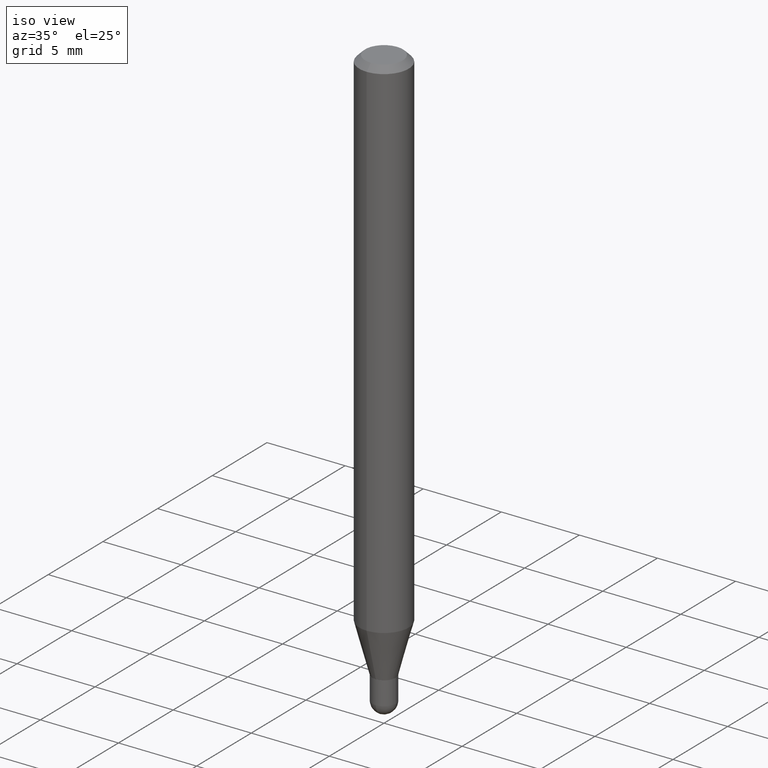
[diagram: clean part render]
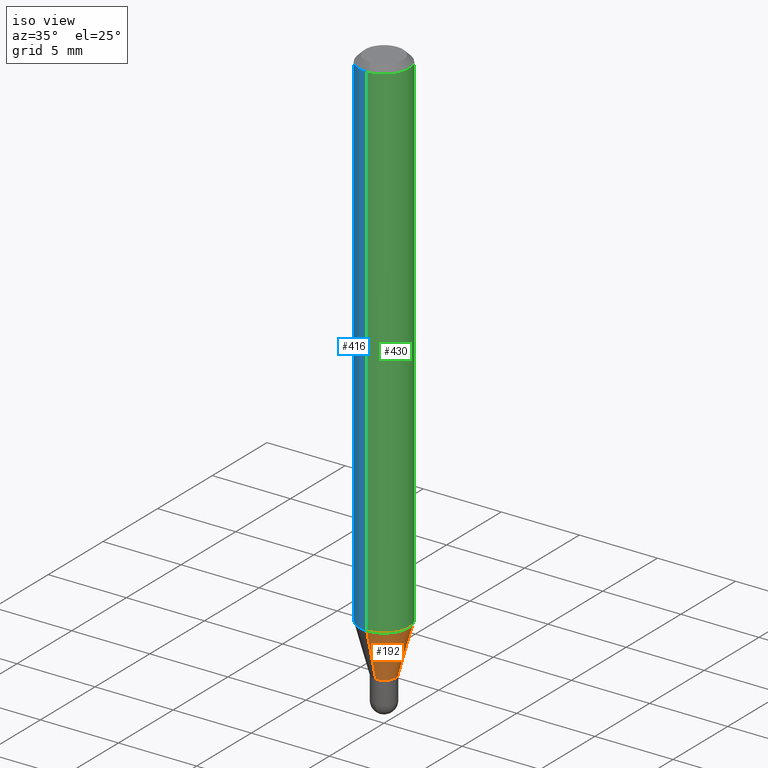
[diagram: same view with three faces highlighted in distinct colors, each labeled with its STEP entity id]
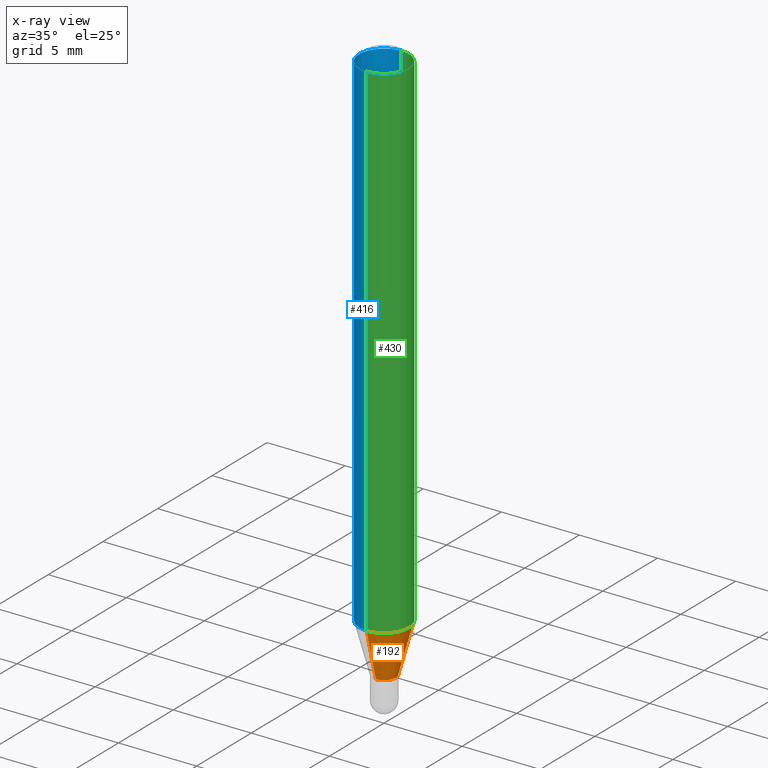
[diagram: x-ray of the same camera — body ghosted, the three highlighted faces saturated]
A machine part, iso view with three faces highlighted in distinct colors.
The next image is the same camera in x-ray (body ghosted, the three faces saturated) — at least one of them is partly hidden behind the body in this view.
Their STEP definitions:

[orange] entity #192 — the highlighted conical surface has half-angle 15 deg.
#3 = CARTESIAN_POINT ( 'NONE',  ( 3.268496584496797545E-16, 0.02949999999999526612, -1.411500000000000199 ) ) ;
#17 = DIRECTION ( 'NONE',  ( -2.445469482940536333E-29, 3.491480369690894735E-15, 1.000000000000000000 ) ) ;
#20 = CARTESIAN_POINT ( 'NONE',  ( 4.440892098500937762E-16, 0.06249999999999546890, -1.288342323350232244 ) ) ;
#30 = EDGE_CURVE ( 'NONE', #60, #437, #422, .T. ) ;
#60 = VERTEX_POINT ( 'NONE', #3 ) ;
#83 = VECTOR ( 'NONE', #88, 39.37007874015748143 ) ;
#88 = DIRECTION ( 'NONE',  ( -1.807323732225377077E-15, -0.2588190451025249028, 0.9659258262890670910 ) ) ;
#124 = LINE ( 'NONE', #446, #83 ) ;
#129 = DIRECTION ( 'NONE',  ( -6.982962677686265922E-15, -1.000000000000000000, 4.370956789862821150E-15 ) ) ;
#132 = CARTESIAN_POINT ( 'NONE',  ( 3.451780175170567435E-29, -4.928224541818698514E-15, -1.411500000000000199 ) ) ;
#137 = FACE_OUTER_BOUND ( 'NONE', #418, .T. ) ;
#150 = EDGE_CURVE ( 'NONE', #257, #60, #152, .T. ) ;
#152 = CIRCLE ( 'NONE', #440, 0.02950000000000019620 ) ;
#167 = ORIENTED_EDGE ( 'NONE', *, *, #150, .T. ) ;
#178 = ORIENTED_EDGE ( 'NONE', *, *, #476, .F. ) ;
#192 = ADVANCED_FACE ( 'NONE', ( #137 ), #429, .T. ) ;
#208 = CARTESIAN_POINT ( 'NONE',  ( -2.059973989917116845E-16, -0.02950000000000512629, -1.411500000000000199 ) ) ;
#222 = ORIENTED_EDGE ( 'NONE', *, *, #467, .F. ) ;
#235 = CARTESIAN_POINT ( 'NONE',  ( 2.096101070492654370E-16, 0.02949999999999526612, -1.411500000000000199 ) ) ;
#241 = DIRECTION ( 'NONE',  ( 1.839019923739647647E-15, 0.2588190451025316197, 0.9659258262890653146 ) ) ;
#257 = VERTEX_POINT ( 'NONE', #208 ) ;
#258 = DIRECTION ( 'NONE',  ( -6.982962677686265922E-15, -1.000000000000000000, 0.000000000000000000 ) ) ;
#286 = DIRECTION ( 'NONE',  ( -6.982962677686265922E-15, -1.000000000000000000, 0.000000000000000000 ) ) ;
#295 = CARTESIAN_POINT ( 'NONE',  ( 3.451780175170567435E-29, -4.928224541818698514E-15, -1.411500000000000199 ) ) ;
#301 = VERTEX_POINT ( 'NONE', #488 ) ;
#418 = EDGE_LOOP ( 'NONE', ( #167, #503, #178, #222 ) ) ;
#422 = LINE ( 'NONE', #235, #505 ) ;
#424 = DIRECTION ( 'NONE',  ( -2.445469482940536333E-29, 3.491480369690894735E-15, 1.000000000000000000 ) ) ;
#429 = CONICAL_SURFACE ( 'NONE', #475, 0.02950000000000019620, 0.2617993877991572349 ) ;
#436 = CARTESIAN_POINT ( 'NONE',  ( 3.150601835333700931E-29, -4.498221931419294481E-15, -1.288342323350231799 ) ) ;
#437 = VERTEX_POINT ( 'NONE', #20 ) ;
#440 = AXIS2_PLACEMENT_3D ( 'NONE', #132, #424, #286 ) ;
#443 = CIRCLE ( 'NONE', #464, 0.06250000000000000000 ) ;
#446 = CARTESIAN_POINT ( 'NONE',  ( -2.059973989917116845E-16, -0.02950000000000512629, -1.411500000000000199 ) ) ;
#453 = DIRECTION ( 'NONE',  ( -2.445469482940536333E-29, 3.491480369690894735E-15, 1.000000000000000000 ) ) ;
#464 = AXIS2_PLACEMENT_3D ( 'NONE', #436, #17, #129 ) ;
#467 = EDGE_CURVE ( 'NONE', #257, #301, #124, .T. ) ;
#475 = AXIS2_PLACEMENT_3D ( 'NONE', #295, #453, #258 ) ;
#476 = EDGE_CURVE ( 'NONE', #301, #437, #443, .T. ) ;
#488 = CARTESIAN_POINT ( 'NONE',  ( -4.364351673553603122E-16, -0.06250000000000451028, -1.288342323350231577 ) ) ;
#503 = ORIENTED_EDGE ( 'NONE', *, *, #30, .T. ) ;
#505 = VECTOR ( 'NONE', #241, 39.37007874015748854 ) ;

[blue] entity #416 — the highlighted cylindrical surface (edge-blend (fillet) strip) has radius 1.5875 mm, axis along (-0, 0, 1).
#11 = EDGE_LOOP ( 'NONE', ( #461, #197, #185, #425 ) ) ;
#20 = CARTESIAN_POINT ( 'NONE',  ( 4.440892098500937762E-16, 0.06249999999999546890, -1.288342323350232244 ) ) ;
#69 = EDGE_CURVE ( 'NONE', #437, #125, #277, .T. ) ;
#96 = CARTESIAN_POINT ( 'NONE',  ( 3.150601835333700931E-29, -4.498221931419294481E-15, -1.288342323350231799 ) ) ;
#103 = AXIS2_PLACEMENT_3D ( 'NONE', #172, #369, #489 ) ;
#125 = VERTEX_POINT ( 'NONE', #201 ) ;
#165 = DIRECTION ( 'NONE',  ( -6.982962677686265922E-15, -1.000000000000000000, 4.370956789862821150E-15 ) ) ;
#166 = DIRECTION ( 'NONE',  ( -2.445469482940536333E-29, 3.491480369690894735E-15, 1.000000000000000000 ) ) ;
#172 = CARTESIAN_POINT ( 'NONE',  ( 0.000000000000000000, 0.000000000000000000, 0.000000000000000000 ) ) ;
#185 = ORIENTED_EDGE ( 'NONE', *, *, #203, .T. ) ;
#197 = ORIENTED_EDGE ( 'NONE', *, *, #252, .T. ) ;
#201 = CARTESIAN_POINT ( 'NONE',  ( 4.440892098500942692E-16, 0.06249999999999995143, -0.01500000000000022669 ) ) ;
#203 = EDGE_CURVE ( 'NONE', #301, #392, #500, .T. ) ;
#220 = VECTOR ( 'NONE', #316, 39.37007874015748143 ) ;
#252 = EDGE_CURVE ( 'NONE', #437, #301, #391, .T. ) ;
#275 = CARTESIAN_POINT ( 'NONE',  ( 3.668204224410806567E-31, -5.237220554536345455E-17, -0.01500000000000000812 ) ) ;
#277 = LINE ( 'NONE', #438, #220 ) ;
#284 = VECTOR ( 'NONE', #393, 39.37007874015748143 ) ;
#301 = VERTEX_POINT ( 'NONE', #488 ) ;
#308 = CARTESIAN_POINT ( 'NONE',  ( -4.364351673553912750E-16, -0.06250000000000005551, -0.01499999999999979128 ) ) ;
#316 = DIRECTION ( 'NONE',  ( -2.445469482940536333E-29, 3.491480369690894735E-15, 1.000000000000000000 ) ) ;
#320 = AXIS2_PLACEMENT_3D ( 'NONE', #275, #166, #329 ) ;
#329 = DIRECTION ( 'NONE',  ( -6.982962677686265922E-15, -1.000000000000000000, 3.483106191921935554E-15 ) ) ;
#364 = CYLINDRICAL_SURFACE ( 'NONE', #103, 0.06250000000000000000 ) ;
#369 = DIRECTION ( 'NONE',  ( -2.445469482940536333E-29, 3.491480369690894735E-15, 1.000000000000000000 ) ) ;
#374 = CARTESIAN_POINT ( 'NONE',  ( -4.364351673553916201E-16, -0.06250000000000000000, 2.182175231056808963E-16 ) ) ;
#377 = DIRECTION ( 'NONE',  ( -2.445469482940536333E-29, 3.491480369690894735E-15, 1.000000000000000000 ) ) ;
#391 = CIRCLE ( 'NONE', #433, 0.06250000000000000000 ) ;
#392 = VERTEX_POINT ( 'NONE', #308 ) ;
#393 = DIRECTION ( 'NONE',  ( -2.445469482940536333E-29, 3.491480369690894735E-15, 1.000000000000000000 ) ) ;
#402 = CIRCLE ( 'NONE', #320, 0.06250000000000000000 ) ;
#412 = FACE_OUTER_BOUND ( 'NONE', #11, .T. ) ;
#416 = ADVANCED_FACE ( 'NONE', ( #412 ), #364, .T. ) ;
#425 = ORIENTED_EDGE ( 'NONE', *, *, #462, .F. ) ;
#433 = AXIS2_PLACEMENT_3D ( 'NONE', #96, #377, #165 ) ;
#437 = VERTEX_POINT ( 'NONE', #20 ) ;
#438 = CARTESIAN_POINT ( 'NONE',  ( 4.440892098500625669E-16, 0.06250000000000000000, -2.182175231056808963E-16 ) ) ;
#461 = ORIENTED_EDGE ( 'NONE', *, *, #69, .F. ) ;
#462 = EDGE_CURVE ( 'NONE', #125, #392, #402, .T. ) ;
#488 = CARTESIAN_POINT ( 'NONE',  ( -4.364351673553603122E-16, -0.06250000000000451028, -1.288342323350231577 ) ) ;
#489 = DIRECTION ( 'NONE',  ( -6.982962677686265922E-15, -1.000000000000000000, 3.491480369690894340E-15 ) ) ;
#500 = LINE ( 'NONE', #374, #284 ) ;

[green] entity #430 — the highlighted cylindrical surface (edge-blend (fillet) strip) has radius 1.5875 mm, axis along (-0, 0, 1).
#17 = DIRECTION ( 'NONE',  ( -2.445469482940536333E-29, 3.491480369690894735E-15, 1.000000000000000000 ) ) ;
#18 = ORIENTED_EDGE ( 'NONE', *, *, #314, .F. ) ;
#20 = CARTESIAN_POINT ( 'NONE',  ( 4.440892098500937762E-16, 0.06249999999999546890, -1.288342323350232244 ) ) ;
#23 = DIRECTION ( 'NONE',  ( -2.445469482940536333E-29, 3.491480369690894735E-15, 1.000000000000000000 ) ) ;
#29 = AXIS2_PLACEMENT_3D ( 'NONE', #200, #236, #321 ) ;
#69 = EDGE_CURVE ( 'NONE', #437, #125, #277, .T. ) ;
#125 = VERTEX_POINT ( 'NONE', #201 ) ;
#129 = DIRECTION ( 'NONE',  ( -6.982962677686265922E-15, -1.000000000000000000, 4.370956789862821150E-15 ) ) ;
#200 = CARTESIAN_POINT ( 'NONE',  ( 0.000000000000000000, 0.000000000000000000, 0.000000000000000000 ) ) ;
#201 = CARTESIAN_POINT ( 'NONE',  ( 4.440892098500942692E-16, 0.06249999999999995143, -0.01500000000000022669 ) ) ;
#203 = EDGE_CURVE ( 'NONE', #301, #392, #500, .T. ) ;
#220 = VECTOR ( 'NONE', #316, 39.37007874015748143 ) ;
#221 = CIRCLE ( 'NONE', #468, 0.06250000000000000000 ) ;
#236 = DIRECTION ( 'NONE',  ( -2.445469482940536333E-29, 3.491480369690894735E-15, 1.000000000000000000 ) ) ;
#239 = EDGE_LOOP ( 'NONE', ( #368, #260, #18, #388 ) ) ;
#250 = FACE_OUTER_BOUND ( 'NONE', #239, .T. ) ;
#260 = ORIENTED_EDGE ( 'NONE', *, *, #69, .T. ) ;
#277 = LINE ( 'NONE', #438, #220 ) ;
#284 = VECTOR ( 'NONE', #393, 39.37007874015748143 ) ;
#285 = DIRECTION ( 'NONE',  ( -6.982962677686265922E-15, -1.000000000000000000, 3.483106191921935554E-15 ) ) ;
#301 = VERTEX_POINT ( 'NONE', #488 ) ;
#308 = CARTESIAN_POINT ( 'NONE',  ( -4.364351673553912750E-16, -0.06250000000000005551, -0.01499999999999979128 ) ) ;
#314 = EDGE_CURVE ( 'NONE', #392, #125, #221, .T. ) ;
#316 = DIRECTION ( 'NONE',  ( -2.445469482940536333E-29, 3.491480369690894735E-15, 1.000000000000000000 ) ) ;
#321 = DIRECTION ( 'NONE',  ( -6.982962677686265922E-15, -1.000000000000000000, 3.491480369690894340E-15 ) ) ;
#368 = ORIENTED_EDGE ( 'NONE', *, *, #476, .T. ) ;
#373 = CYLINDRICAL_SURFACE ( 'NONE', #29, 0.06250000000000000000 ) ;
#374 = CARTESIAN_POINT ( 'NONE',  ( -4.364351673553916201E-16, -0.06250000000000000000, 2.182175231056808963E-16 ) ) ;
#382 = CARTESIAN_POINT ( 'NONE',  ( 3.668204224410806567E-31, -5.237220554536345455E-17, -0.01500000000000000812 ) ) ;
#388 = ORIENTED_EDGE ( 'NONE', *, *, #203, .F. ) ;
#392 = VERTEX_POINT ( 'NONE', #308 ) ;
#393 = DIRECTION ( 'NONE',  ( -2.445469482940536333E-29, 3.491480369690894735E-15, 1.000000000000000000 ) ) ;
#430 = ADVANCED_FACE ( 'NONE', ( #250 ), #373, .T. ) ;
#436 = CARTESIAN_POINT ( 'NONE',  ( 3.150601835333700931E-29, -4.498221931419294481E-15, -1.288342323350231799 ) ) ;
#437 = VERTEX_POINT ( 'NONE', #20 ) ;
#438 = CARTESIAN_POINT ( 'NONE',  ( 4.440892098500625669E-16, 0.06250000000000000000, -2.182175231056808963E-16 ) ) ;
#443 = CIRCLE ( 'NONE', #464, 0.06250000000000000000 ) ;
#464 = AXIS2_PLACEMENT_3D ( 'NONE', #436, #17, #129 ) ;
#468 = AXIS2_PLACEMENT_3D ( 'NONE', #382, #23, #285 ) ;
#476 = EDGE_CURVE ( 'NONE', #301, #437, #443, .T. ) ;
#488 = CARTESIAN_POINT ( 'NONE',  ( -4.364351673553603122E-16, -0.06250000000000451028, -1.288342323350231577 ) ) ;
#500 = LINE ( 'NONE', #374, #284 ) ;